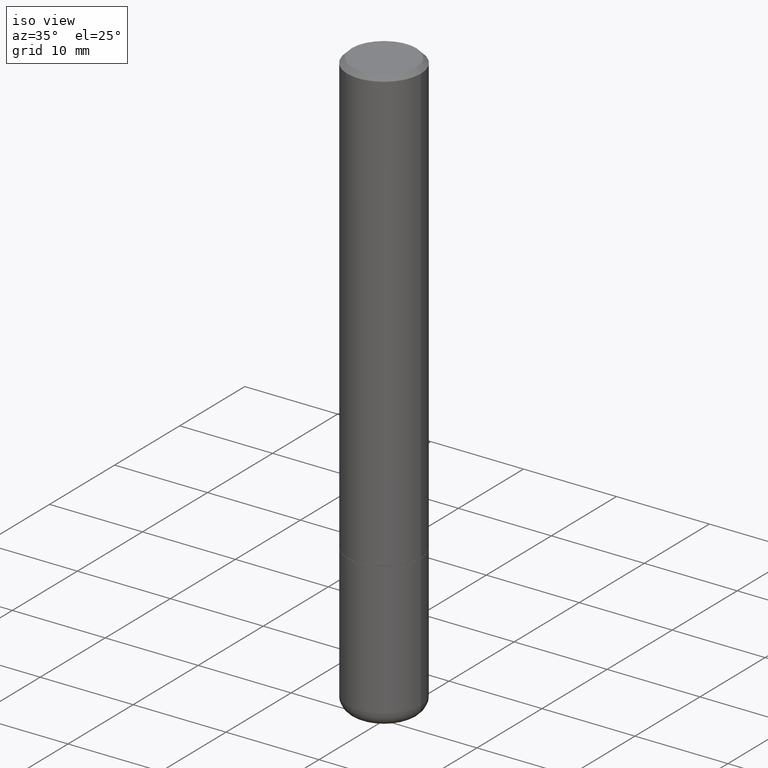
[diagram: clean part render]
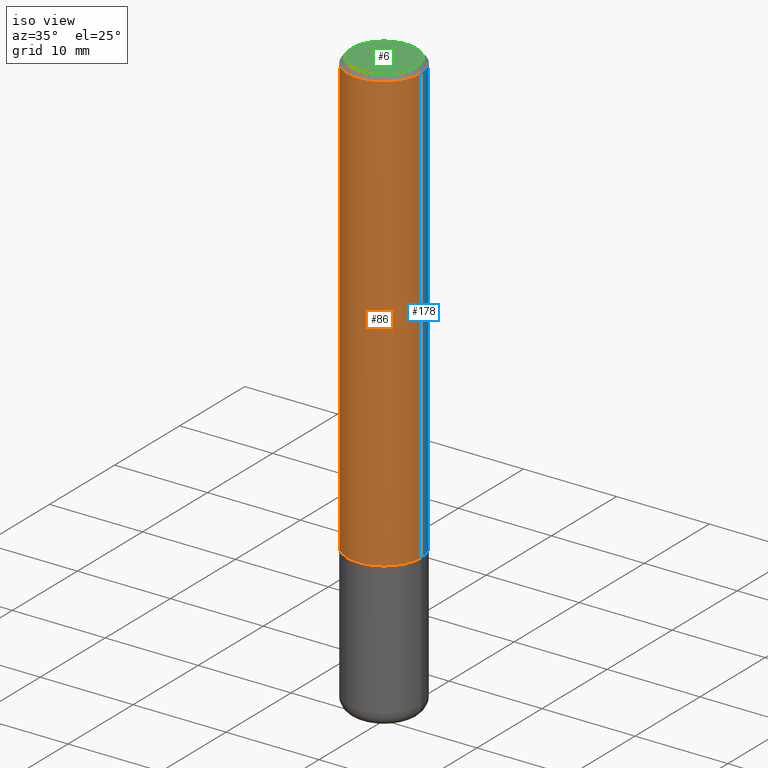
[diagram: same view with three faces highlighted in distinct colors, each labeled with its STEP entity id]
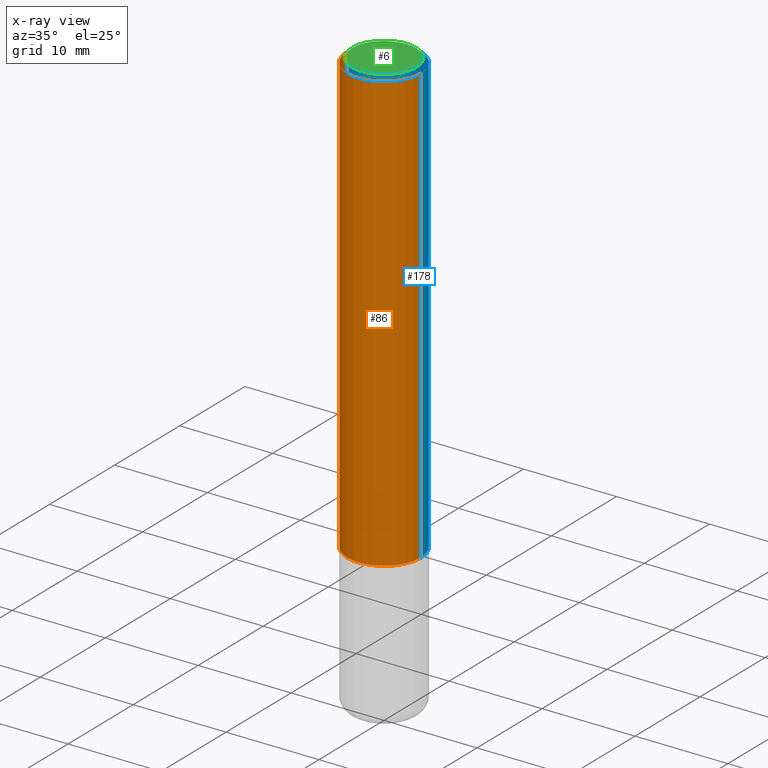
[diagram: x-ray of the same camera — body ghosted, the three highlighted faces saturated]
A machine part, iso view with three faces highlighted in distinct colors.
The next image is the same camera in x-ray (body ghosted, the three faces saturated) — at least one of them is partly hidden behind the body in this view.
Their STEP definitions:

[orange] entity #86 — the highlighted cylindrical surface (partial cylindrical patch) has radius 3.9688 mm, axis along (-0, 0, 1).
#4 = FACE_OUTER_BOUND ( 'NONE', #177, .T. ) ;
#19 = CARTESIAN_POINT ( 'NONE',  ( -0.1562500000000002220, -2.196209803259299803E-15, -1.874000000000000110 ) ) ;
#23 = ORIENTED_EDGE ( 'NONE', *, *, #272, .F. ) ;
#26 = ORIENTED_EDGE ( 'NONE', *, *, #347, .F. ) ;
#36 = AXIS2_PLACEMENT_3D ( 'NONE', #164, #321, #294 ) ;
#38 = DIRECTION ( 'NONE',  ( -2.445468806185136597E-29, 3.491481338843145583E-15, 1.000000000000000000 ) ) ;
#42 = CYLINDRICAL_SURFACE ( 'NONE', #241, 0.1562500000000001388 ) ;
#45 = AXIS2_PLACEMENT_3D ( 'NONE', #343, #49, #118 ) ;
#49 = DIRECTION ( 'NONE',  ( -2.445468806185136597E-29, 3.491481338843145583E-15, 1.000000000000000000 ) ) ;
#64 = CARTESIAN_POINT ( 'NONE',  ( 0.000000000000000000, 0.000000000000000000, 0.000000000000000000 ) ) ;
#86 = ADVANCED_FACE ( 'NONE', ( #4 ), #42, .T. ) ;
#100 = VERTEX_POINT ( 'NONE', #19 ) ;
#109 = VERTEX_POINT ( 'NONE', #315 ) ;
#115 = CIRCLE ( 'NONE', #45, 0.1562500000000002220 ) ;
#118 = DIRECTION ( 'NONE',  ( 1.000000000000000000, -6.982962677686265922E-15, 0.000000000000000000 ) ) ;
#164 = CARTESIAN_POINT ( 'NONE',  ( 4.890937612370281041E-31, -6.982962677686302702E-17, -0.02000000000000003511 ) ) ;
#177 = EDGE_LOOP ( 'NONE', ( #23, #322, #403, #26 ) ) ;
#197 = DIRECTION ( 'NONE',  ( -2.445468806185136877E-29, 3.491481338843145188E-15, 1.000000000000000000 ) ) ;
#214 = VERTEX_POINT ( 'NONE', #408 ) ;
#227 = LINE ( 'NONE', #415, #417 ) ;
#241 = AXIS2_PLACEMENT_3D ( 'NONE', #64, #38, #302 ) ;
#262 = EDGE_CURVE ( 'NONE', #100, #109, #115, .T. ) ;
#272 = EDGE_CURVE ( 'NONE', #100, #373, #418, .T. ) ;
#294 = DIRECTION ( 'NONE',  ( 1.000000000000000000, -6.982962677686266711E-15, 0.000000000000000000 ) ) ;
#302 = DIRECTION ( 'NONE',  ( 1.000000000000000000, -6.982962677686266711E-15, 4.876176775795936353E-29 ) ) ;
#315 = CARTESIAN_POINT ( 'NONE',  ( 0.1562500000000002220, -7.634123947380535662E-15, -1.874000000000000110 ) ) ;
#321 = DIRECTION ( 'NONE',  ( -2.445468806185136597E-29, 3.491481338843145583E-15, 1.000000000000000000 ) ) ;
#322 = ORIENTED_EDGE ( 'NONE', *, *, #262, .T. ) ;
#325 = CARTESIAN_POINT ( 'NONE',  ( -0.1562500000000000278, 1.021258291611616467E-15, -0.02000000000000003511 ) ) ;
#337 = EDGE_CURVE ( 'NONE', #109, #214, #227, .T. ) ;
#341 = VECTOR ( 'NONE', #348, 39.37007874015748143 ) ;
#343 = CARTESIAN_POINT ( 'NONE',  ( 4.582808542790945516E-29, -6.543036028992054911E-15, -1.874000000000000110 ) ) ;
#347 = EDGE_CURVE ( 'NONE', #373, #214, #385, .T. ) ;
#348 = DIRECTION ( 'NONE',  ( -2.445468806185136877E-29, 3.491481338843145188E-15, 1.000000000000000000 ) ) ;
#373 = VERTEX_POINT ( 'NONE', #325 ) ;
#383 = CARTESIAN_POINT ( 'NONE',  ( -0.1562500000000001388, 1.110223024625157526E-15, -7.685836078523296765E-30 ) ) ;
#385 = CIRCLE ( 'NONE', #36, 0.1562500000000000278 ) ;
#403 = ORIENTED_EDGE ( 'NONE', *, *, #337, .T. ) ;
#408 = CARTESIAN_POINT ( 'NONE',  ( 0.1562500000000000278, -1.141782438928665105E-15, -0.02000000000000003511 ) ) ;
#415 = CARTESIAN_POINT ( 'NONE',  ( 0.1562500000000001388, -1.091087918388480160E-15, 7.619026212181157383E-30 ) ) ;
#417 = VECTOR ( 'NONE', #197, 39.37007874015748143 ) ;
#418 = LINE ( 'NONE', #383, #341 ) ;

[blue] entity #178 — the highlighted cylindrical surface (partial cylindrical patch) has radius 3.9688 mm, axis along (-0, 0, 1).
#12 = DIRECTION ( 'NONE',  ( -2.445468806185136597E-29, 3.491481338843145583E-15, 1.000000000000000000 ) ) ;
#18 = EDGE_CURVE ( 'NONE', #109, #100, #366, .T. ) ;
#19 = CARTESIAN_POINT ( 'NONE',  ( -0.1562500000000002220, -2.196209803259299803E-15, -1.874000000000000110 ) ) ;
#47 = ORIENTED_EDGE ( 'NONE', *, *, #337, .F. ) ;
#100 = VERTEX_POINT ( 'NONE', #19 ) ;
#109 = VERTEX_POINT ( 'NONE', #315 ) ;
#123 = CARTESIAN_POINT ( 'NONE',  ( 0.000000000000000000, 0.000000000000000000, 0.000000000000000000 ) ) ;
#139 = CARTESIAN_POINT ( 'NONE',  ( 4.582808542790945516E-29, -6.543036028992054911E-15, -1.874000000000000110 ) ) ;
#145 = EDGE_CURVE ( 'NONE', #214, #373, #275, .T. ) ;
#148 = CARTESIAN_POINT ( 'NONE',  ( 4.890937612370281041E-31, -6.982962677686302702E-17, -0.02000000000000003511 ) ) ;
#151 = DIRECTION ( 'NONE',  ( -2.445468806185136597E-29, 3.491481338843145583E-15, 1.000000000000000000 ) ) ;
#157 = DIRECTION ( 'NONE',  ( 1.000000000000000000, -6.982962677686266711E-15, 0.000000000000000000 ) ) ;
#178 = ADVANCED_FACE ( 'NONE', ( #284 ), #345, .T. ) ;
#180 = DIRECTION ( 'NONE',  ( 1.000000000000000000, -6.982962677686265922E-15, 0.000000000000000000 ) ) ;
#191 = AXIS2_PLACEMENT_3D ( 'NONE', #123, #151, #251 ) ;
#197 = DIRECTION ( 'NONE',  ( -2.445468806185136877E-29, 3.491481338843145188E-15, 1.000000000000000000 ) ) ;
#214 = VERTEX_POINT ( 'NONE', #408 ) ;
#225 = AXIS2_PLACEMENT_3D ( 'NONE', #139, #336, #180 ) ;
#227 = LINE ( 'NONE', #415, #417 ) ;
#242 = ORIENTED_EDGE ( 'NONE', *, *, #145, .F. ) ;
#251 = DIRECTION ( 'NONE',  ( 1.000000000000000000, -6.982962677686266711E-15, 4.876176775795936353E-29 ) ) ;
#272 = EDGE_CURVE ( 'NONE', #100, #373, #418, .T. ) ;
#275 = CIRCLE ( 'NONE', #379, 0.1562500000000000278 ) ;
#284 = FACE_OUTER_BOUND ( 'NONE', #340, .T. ) ;
#291 = ORIENTED_EDGE ( 'NONE', *, *, #272, .T. ) ;
#315 = CARTESIAN_POINT ( 'NONE',  ( 0.1562500000000002220, -7.634123947380535662E-15, -1.874000000000000110 ) ) ;
#325 = CARTESIAN_POINT ( 'NONE',  ( -0.1562500000000000278, 1.021258291611616467E-15, -0.02000000000000003511 ) ) ;
#336 = DIRECTION ( 'NONE',  ( -2.445468806185136597E-29, 3.491481338843145583E-15, 1.000000000000000000 ) ) ;
#337 = EDGE_CURVE ( 'NONE', #109, #214, #227, .T. ) ;
#340 = EDGE_LOOP ( 'NONE', ( #349, #291, #242, #47 ) ) ;
#341 = VECTOR ( 'NONE', #348, 39.37007874015748143 ) ;
#345 = CYLINDRICAL_SURFACE ( 'NONE', #191, 0.1562500000000001388 ) ;
#348 = DIRECTION ( 'NONE',  ( -2.445468806185136877E-29, 3.491481338843145188E-15, 1.000000000000000000 ) ) ;
#349 = ORIENTED_EDGE ( 'NONE', *, *, #18, .T. ) ;
#366 = CIRCLE ( 'NONE', #225, 0.1562500000000002220 ) ;
#373 = VERTEX_POINT ( 'NONE', #325 ) ;
#379 = AXIS2_PLACEMENT_3D ( 'NONE', #148, #12, #157 ) ;
#383 = CARTESIAN_POINT ( 'NONE',  ( -0.1562500000000001388, 1.110223024625157526E-15, -7.685836078523296765E-30 ) ) ;
#408 = CARTESIAN_POINT ( 'NONE',  ( 0.1562500000000000278, -1.141782438928665105E-15, -0.02000000000000003511 ) ) ;
#415 = CARTESIAN_POINT ( 'NONE',  ( 0.1562500000000001388, -1.091087918388480160E-15, 7.619026212181157383E-30 ) ) ;
#417 = VECTOR ( 'NONE', #197, 39.37007874015748143 ) ;
#418 = LINE ( 'NONE', #383, #341 ) ;

[green] entity #6 — the highlighted planar face has unit normal (0, -0, -1).
#1 = ORIENTED_EDGE ( 'NONE', *, *, #112, .T. ) ;
#6 = ADVANCED_FACE ( 'NONE', ( #140 ), #183, .F. ) ;
#40 = ORIENTED_EDGE ( 'NONE', *, *, #371, .T. ) ;
#62 = VERTEX_POINT ( 'NONE', #239 ) ;
#65 = CIRCLE ( 'NONE', #106, 0.1362500000000000377 ) ;
#71 = DIRECTION ( 'NONE',  ( 2.438088387897960049E-29, -3.491481338843145188E-15, -1.000000000000000000 ) ) ;
#106 = AXIS2_PLACEMENT_3D ( 'NONE', #380, #188, #377 ) ;
#112 = EDGE_CURVE ( 'NONE', #280, #62, #65, .T. ) ;
#128 = DIRECTION ( 'NONE',  ( -2.445468806185136597E-29, 3.491481338843145583E-15, 1.000000000000000000 ) ) ;
#140 = FACE_OUTER_BOUND ( 'NONE', #354, .T. ) ;
#147 = CARTESIAN_POINT ( 'NONE',  ( 9.514286648347541549E-16, 0.1362500000000000377, -4.757143324173787538E-16 ) ) ;
#183 = PLANE ( 'NONE',  #358 ) ;
#188 = DIRECTION ( 'NONE',  ( -2.445468806185136597E-29, 3.491481338843145583E-15, 1.000000000000000000 ) ) ;
#196 = CARTESIAN_POINT ( 'NONE',  ( 0.000000000000000000, 0.000000000000000000, 0.000000000000000000 ) ) ;
#208 = AXIS2_PLACEMENT_3D ( 'NONE', #196, #128, #265 ) ;
#231 = CARTESIAN_POINT ( 'NONE',  ( -0.1362500000000000377, 9.863434782231852123E-16, -6.775751096333141285E-30 ) ) ;
#239 = CARTESIAN_POINT ( 'NONE',  ( 0.1362500000000000377, -1.038262645562518322E-15, 6.957025900226697878E-30 ) ) ;
#250 = CIRCLE ( 'NONE', #208, 0.1362500000000000377 ) ;
#265 = DIRECTION ( 'NONE',  ( 1.000000000000000000, -6.982962677686266711E-15, 4.876176775795936353E-29 ) ) ;
#279 = DIRECTION ( 'NONE',  ( -1.000000000000000000, 6.982962677686265922E-15, -4.876176775795935793E-29 ) ) ;
#280 = VERTEX_POINT ( 'NONE', #231 ) ;
#354 = EDGE_LOOP ( 'NONE', ( #1, #40 ) ) ;
#358 = AXIS2_PLACEMENT_3D ( 'NONE', #147, #71, #279 ) ;
#371 = EDGE_CURVE ( 'NONE', #62, #280, #250, .T. ) ;
#377 = DIRECTION ( 'NONE',  ( 1.000000000000000000, -6.982962677686266711E-15, 4.876176775795936353E-29 ) ) ;
#380 = CARTESIAN_POINT ( 'NONE',  ( 0.000000000000000000, 0.000000000000000000, 0.000000000000000000 ) ) ;